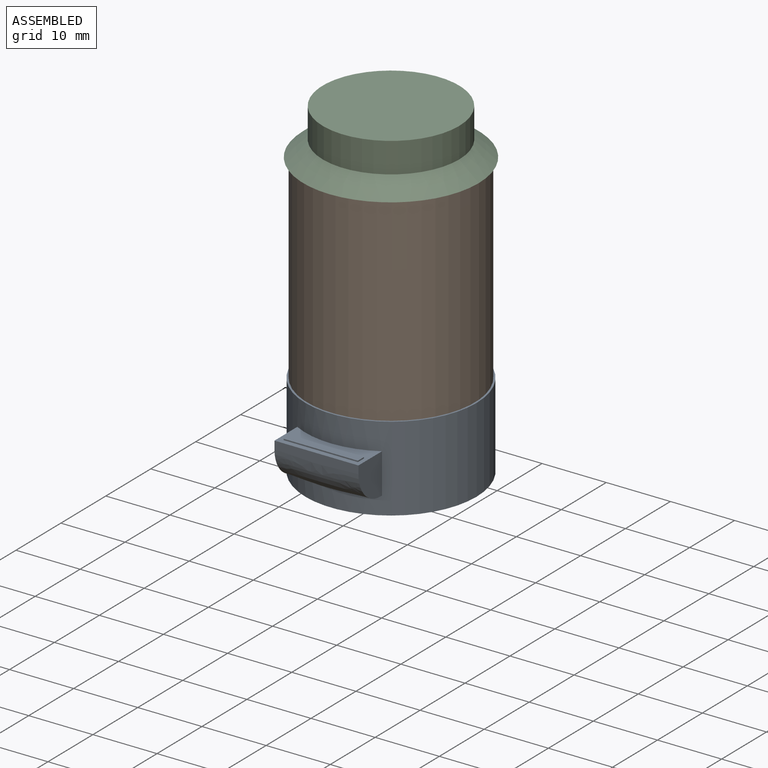
[diagram: assembled view]
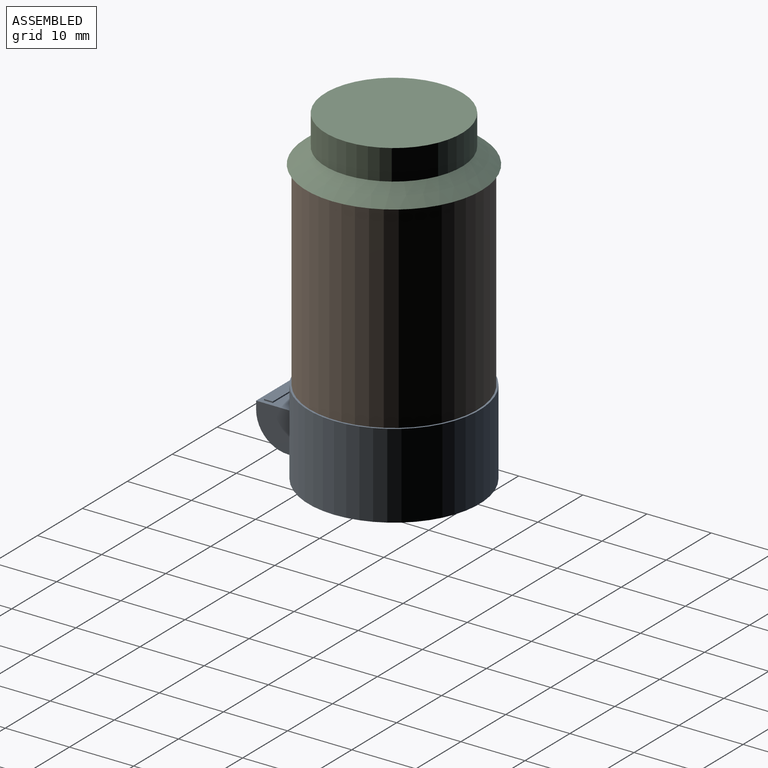
[diagram: assembled view, second angle]
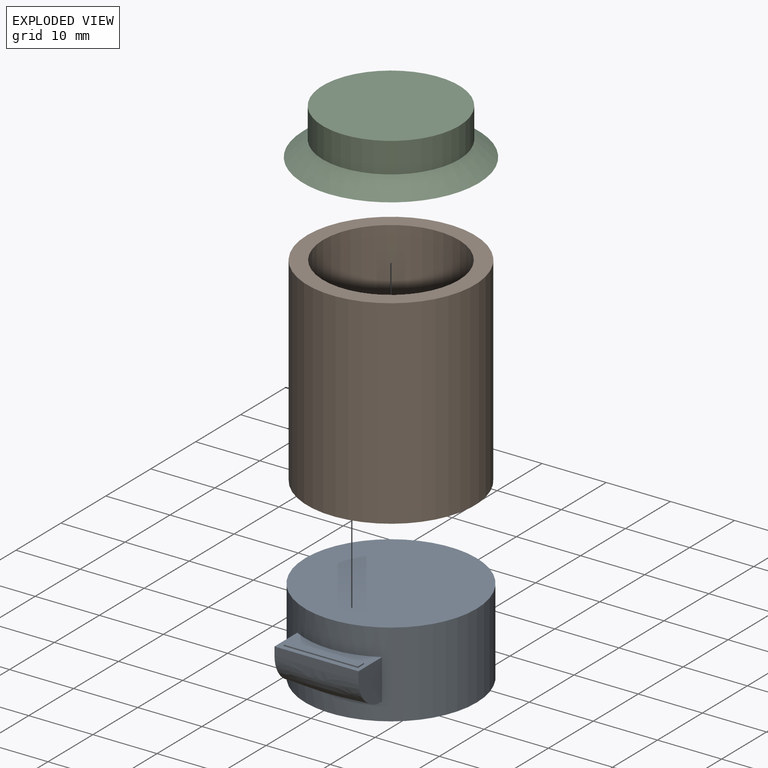
[diagram: exploded view]
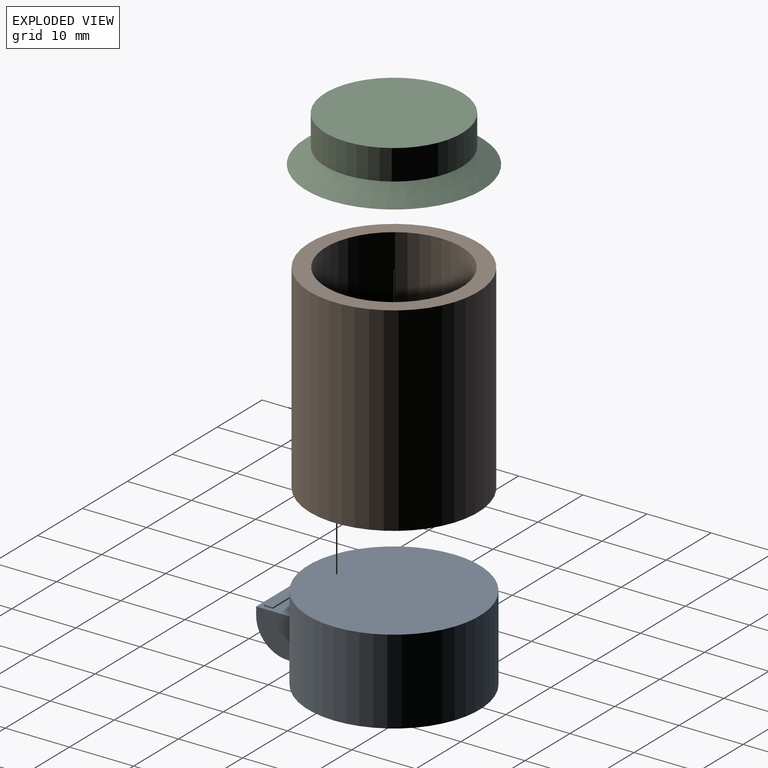
[diagram: exploded view, second angle]
ASSEMBLY  parts=3 mates=2
PART A: 17 faces, bbox 26.7x30.2x13.2 mm
  f0: plane 0.45x0.25mm, normal (0,0,-1), area 0.1mm2, adj f1,f5,f9
  f1: cylinder r=13.35mm len=26.7mm, axis (0,0,1), area 1023.1mm2, adj f0,f2,f3,f4,f5,f6,f7,f10
  f2: plane 26.7x26.7mm, normal (0,0,-1), area 560.1mm2, adj f1
  f3: plane 26.7x26.7mm, normal (0,0,1), area 560.1mm2, adj f1
  f4: plane 6.25x5.08mm, normal (-1,0,0), area 26.4mm2, adj f1,f6,f7,f8,f11
  f5: plane 6.25x5.25mm, normal (1,0,0), area 27.4mm2, adj f0,f1,f6,f8,f9
  f6: plane 13.09x5.25mm, normal (0,0,1), area 36.8mm2, adj f1,f4,f5,f8,f12,f13,f14,f15
  f7: plane 0.15x0.08mm, normal (0,0,-1), area 0mm2, adj f1,f4,f11
  f8: plane 13.09x1.5mm, normal (0,-1,0), area 17.9mm2, adj f4,f5,f6,f9,f10,f11
  f9: cylinder r=5mm len=5mm, axis (-1,0,0), area 3.5mm2, adj f0,f5,f8,f10
  f10: bspline ~14.44x5.49mm, area 84.9mm2, adj f1,f8,f9,f11
  f11: cylinder r=5mm len=5mm, axis (-1,0,0), area 1.2mm2, adj f4,f7,f8,f10
  f12: plane 11.57x0.2mm, normal (0,1,0), area 2.3mm2, adj f6,f13,f15,f16
  f13: plane 1.35x0.2mm, normal (-1,0,0), area 0.3mm2, adj f6,f12,f14,f16
  f14: plane 11.57x0.2mm, normal (0,-1,0), area 2.3mm2, adj f6,f13,f15,f16
  f15: plane 1.35x0.2mm, normal (1,0,0), area 0.3mm2, adj f6,f12,f14,f16
  f16: plane 11.57x1.35mm, normal (0,0,1), area 15.6mm2, adj f12,f13,f14,f15
PART B: 5 faces, bbox 26.2x26.2x31.1 mm
  f0: cylinder r=13.08mm len=31.06mm, axis (0,0,-1), area 2552.9mm2, adj f1,f2
  f1: plane 26.16x26.16mm, normal (0,0,-1), area 537.4mm2, adj f0
  f2: plane 26.16x26.16mm, normal (0,0,1), area 185.8mm2, adj f0,f3
  f3: cylinder r=10.58mm len=28.56mm, axis (0,0,-1), area 1898.8mm2, adj f2,f4
  f4: plane 21.16x21.16mm, normal (0,0,1), area 351.6mm2, adj f3
PART C: 4 faces, bbox 27.4x27.4x7.2 mm
  f0: cone r=13.7mm half-angle=50.5deg, axis (0,0,-1), area 302.7mm2, adj f1,f3
  f1: plane 27.39x27.39mm, normal (0,0,-1), area 589.3mm2, adj f0
  f2: plane 21.28x21.28mm, normal (0,0,1), area 355.5mm2, adj f3
  f3: cylinder r=10.64mm len=21.28mm, axis (0,0,1), area 315.5mm2, adj f0,f2
PLACE A t=(12.45,34.3,-7.23)mm
PLACE B t=(12.45,34.3,-10.77)mm
PLACE C t=(12.45,34.3,-13.25)mm
MATE fastened B.f0 <-> A.f1  axis (0,0,-1) through (12.45,34.3,5.98)mm
MATE fastened B.f0 <-> C.f0  axis (0,0,-1) through (12.45,34.3,37.05)mm
